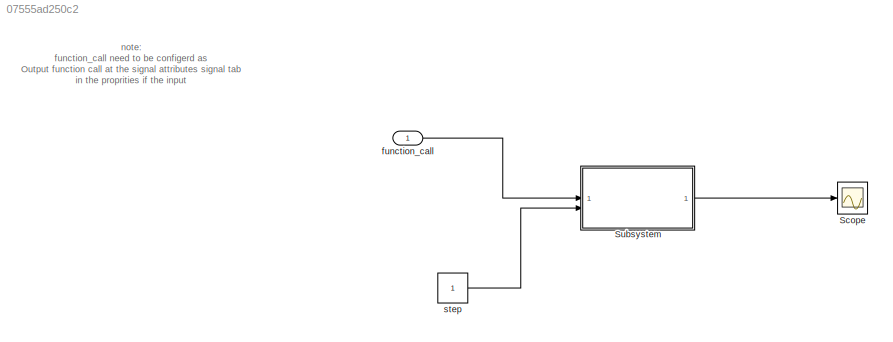
MODEL slx_07555ad250c2
KIND model
CONFIG AbsTol = auto
CONFIG EnableMultiTasking = off
CONFIG FixedStep = auto
CONFIG MaxStep = auto
CONFIG MinStep = auto
CONFIG RelTol = 1e-3
CONFIG SampleTimeConstraint = Unconstrained
CONFIG SolverName = FixedStepAuto
CONFIG StartTime = 0.0
CONFIG StopTime = 10.0
BLOCK [Scope] Scope
  Floating = off
  NumInputPorts = 1
  ScopeSpecificationString = Simulink.scopes.TimeScopeBlockCfg('CurrentConfiguration', extmgr.ConfigurationSet(extmgr.Configuration('Core','General UI',true),extmgr.Configuration('Core','Source UI',true),extmgr.Configuration('Sources','WiredSimulink',true),extmgr.Configuration('Visuals','Time Domain',true,'SerializedDisplays',{struct('MinYLimReal','10.44268','MaxYLimReal','11.05023','YLabelReal','','MinYLimMag','10.44268','Ma...<+1468ch>
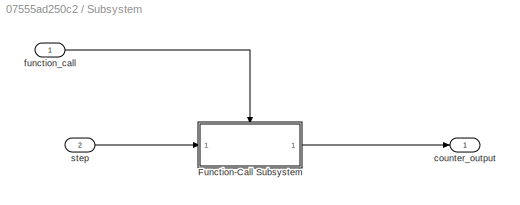
BLOCK [SubSystem] Subsystem
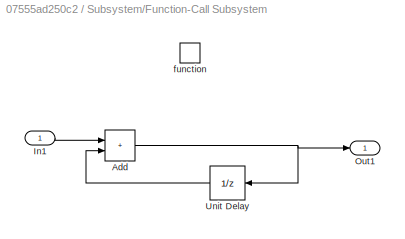
BLOCK [SubSystem] Subsystem/Function-Call Subsystem
  TreatAsAtomicUnit = on
BLOCK [Sum] Subsystem/Function-Call Subsystem/Add
  IconShape = rectangular
BLOCK [Inport] Subsystem/Function-Call Subsystem/In1
BLOCK [Outport] Subsystem/Function-Call Subsystem/Out1
BLOCK [UnitDelay] Subsystem/Function-Call Subsystem/Unit Delay
  HasFrameUpgradeWarning = on
  SampleTime = -1
BLOCK [TriggerPort] Subsystem/Function-Call Subsystem/function
  StatesWhenEnabling = held
  TriggerType = function-call
  VariantControl = (inherit)
BLOCK [Outport] Subsystem/counter_output
BLOCK [Inport] Subsystem/function_call
BLOCK [Inport] Subsystem/step
  Port = 2
BLOCK [Inport] function_call
  OutputFunctionCall = on
BLOCK [Constant] step
ANNOTATION (root): note: function_call need to be configerd as Output function call at the signal attributes signal tab in the proprities if the input
NET Subsystem/Function-Call Subsystem/Add:1 -> Subsystem/Function-Call Subsystem/Out1:1, Subsystem/Function-Call Subsystem/Unit Delay:1
LINE Subsystem/Function-Call Subsystem/In1:1 -> Subsystem/Function-Call Subsystem/Add:1
LINE Subsystem/Function-Call Subsystem/Unit Delay:1 -> Subsystem/Function-Call Subsystem/Add:2
LINE Subsystem/Function-Call Subsystem:1 -> Subsystem/counter_output:1
LINE Subsystem/function_call:1 -> Subsystem/Function-Call Subsystem:trigger
LINE Subsystem/step:1 -> Subsystem/Function-Call Subsystem:1
LINE Subsystem:1 -> Scope:1
LINE function_call:1 -> Subsystem:1
LINE step:1 -> Subsystem:2
note: NET lines group one-source signal fan-out (src -> all destinations, sorted); 1:1 wires keep LINE
